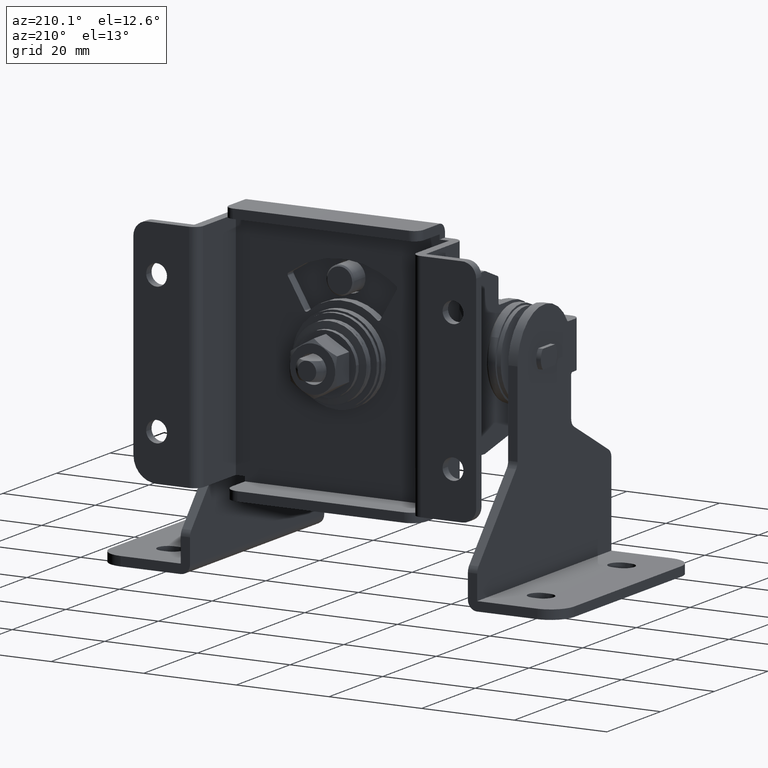
[diagram: clean part render]
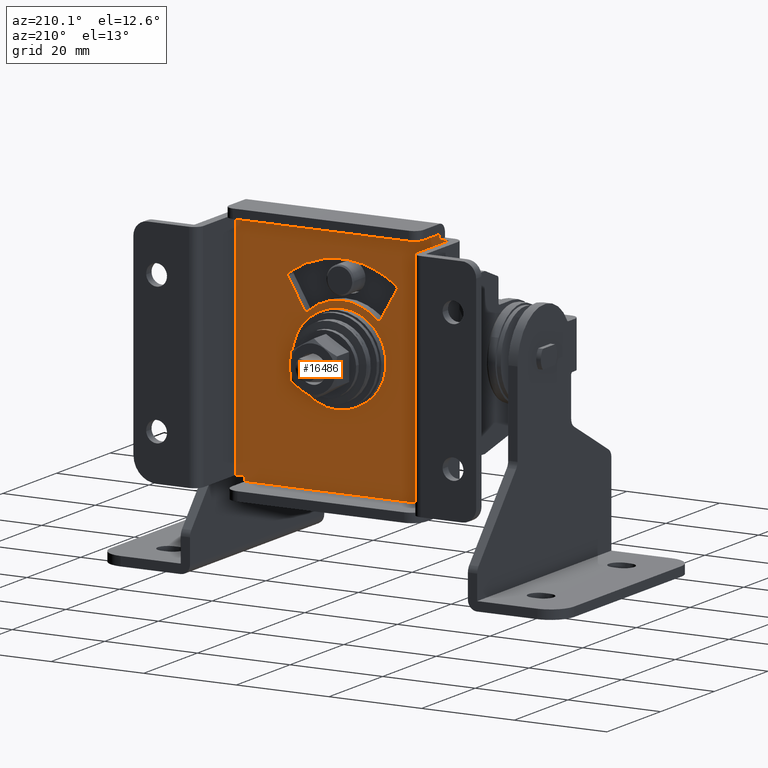
[diagram: same view with one face highlighted and labeled with its STEP entity id]
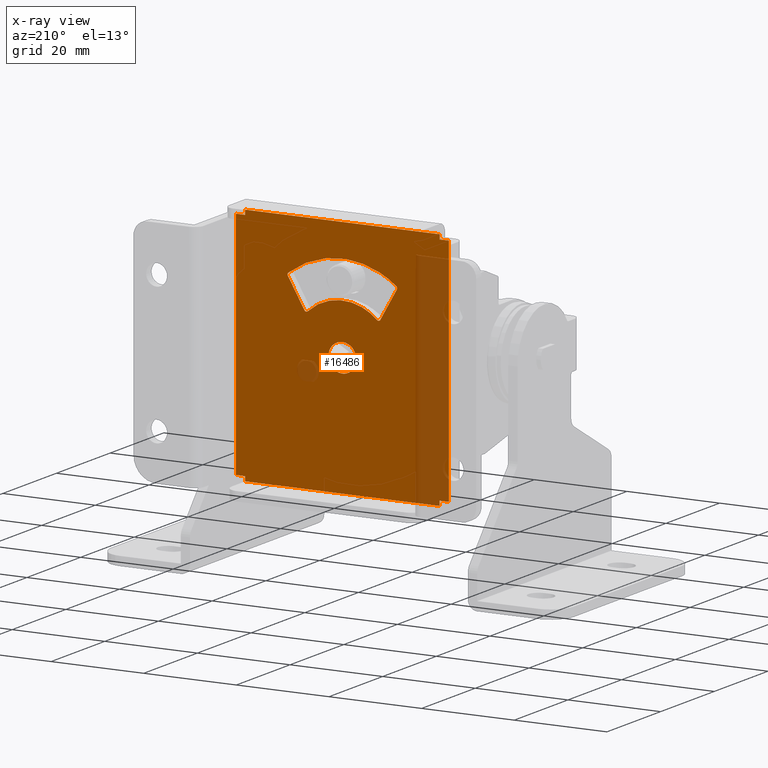
[diagram: x-ray of the same camera — body ghosted, the highlighted face saturated]
A machine part, auxiliary view. The second image highlights one B-rep face of the part: STEP entity #16486.
The next image is the same camera in x-ray: the body ghosted, the highlighted face saturated — about 16% of this face is hidden behind the body in this view.
In plain terms, the highlighted face is a freeform B-spline surface patch.
Its self-contained STEP definition (entity closure, byte-faithful):
#13644=CARTESIAN_POINT('',(-3.015674934529903,-14.0,0.237338764739389));
#13645=VERTEX_POINT('',#13644);
#13651=CARTESIAN_POINT('',(7.105427E-015,-14.0,3.025000000000000));
#13652=VERTEX_POINT('',#13651);
#13653=CARTESIAN_POINT('',(7.105427E-015,-14.0,3.025000000000000));
#13654=CARTESIAN_POINT('',(-2.796281236963489,-14.000000000000007,3.025000000000000));
#13655=CARTESIAN_POINT('',(-3.015674934529903,-14.000000000000002,0.237338764739389));
#13663=(BOUNDED_CURVE()B_SPLINE_CURVE(2,(#13653,#13654,#13655),.UNSPECIFIED.,.F.,.U.)B_SPLINE_CURVE_WITH_KNOTS((3,3),(0.0,0.236331300614275),.UNSPECIFIED.)CURVE()GEOMETRIC_REPRESENTATION_ITEM()RATIONAL_B_SPLINE_CURVE((1.0,0.723120658626862,0.969723356133223))REPRESENTATION_ITEM(''));
#13664=EDGE_CURVE('',#13652,#13645,#13663,.T.);
#13666=CARTESIAN_POINT('',(3.015674934529917,-14.0,-0.237338764739389));
#13667=VERTEX_POINT('',#13666);
#13668=CARTESIAN_POINT('',(3.015674934529917,-14.000000000000004,-0.237338764739389));
#13669=CARTESIAN_POINT('',(3.025000000000007,-14.000000000000002,-0.118852573861613));
#13670=CARTESIAN_POINT('',(3.025000000000007,-14.0,0.0));
#13671=CARTESIAN_POINT('',(3.025000000000007,-13.999999999999998,3.025000000000000));
#13672=CARTESIAN_POINT('',(7.105427E-015,-14.0,3.025000000000000));
#13680=(BOUNDED_CURVE()B_SPLINE_CURVE(2,(#13668,#13669,#13670,#13671,#13672),.UNSPECIFIED.,.F.,.U.)B_SPLINE_CURVE_WITH_KNOTS((3,2,3),(0.736331300614275,0.750000000000000,1.0),.UNSPECIFIED.)CURVE()GEOMETRIC_REPRESENTATION_ITEM()RATIONAL_B_SPLINE_CURVE((0.969723356133223,0.983986122559686,1.0,0.707106781186548,1.0))REPRESENTATION_ITEM(''));
#13681=EDGE_CURVE('',#13667,#13652,#13680,.T.);
#13757=CARTESIAN_POINT('',(7.105427E-015,-14.0,-3.025000000000000));
#13758=VERTEX_POINT('',#13757);
#13759=CARTESIAN_POINT('',(7.105427E-015,-14.0,-3.025000000000000));
#13760=CARTESIAN_POINT('',(2.796281236963497,-13.999999999999996,-3.024999999999999));
#13761=CARTESIAN_POINT('',(3.015674934529917,-14.000000000000004,-0.237338764739389));
#13769=(BOUNDED_CURVE()B_SPLINE_CURVE(2,(#13759,#13760,#13761),.UNSPECIFIED.,.F.,.U.)B_SPLINE_CURVE_WITH_KNOTS((3,3),(0.500000000000000,0.736331300614274),.UNSPECIFIED.)CURVE()GEOMETRIC_REPRESENTATION_ITEM()RATIONAL_B_SPLINE_CURVE((1.0,0.723120658626862,0.969723356133223))REPRESENTATION_ITEM(''));
#13770=EDGE_CURVE('',#13758,#13667,#13769,.T.);
#13772=CARTESIAN_POINT('',(-3.015674934529903,-14.000000000000002,0.237338764739389));
#13773=CARTESIAN_POINT('',(-3.024999999999993,-14.0,0.118852573861612));
#13774=CARTESIAN_POINT('',(-3.024999999999993,-14.0,0.0));
#13775=CARTESIAN_POINT('',(-3.024999999999992,-13.999999999999998,-3.025000000000000));
#13776=CARTESIAN_POINT('',(7.105427E-015,-14.0,-3.025000000000000));
#13784=(BOUNDED_CURVE()B_SPLINE_CURVE(2,(#13772,#13773,#13774,#13775,#13776),.UNSPECIFIED.,.F.,.U.)B_SPLINE_CURVE_WITH_KNOTS((3,2,3),(0.236331300614275,0.250000000000000,0.500000000000000),.UNSPECIFIED.)CURVE()GEOMETRIC_REPRESENTATION_ITEM()RATIONAL_B_SPLINE_CURVE((0.969723356133223,0.983986122559686,1.0,0.707106781186548,1.0))REPRESENTATION_ITEM(''));
#13785=EDGE_CURVE('',#13645,#13758,#13784,.T.);
#14533=CARTESIAN_POINT('',(11.763227601264800,-14.0,14.374507866387720));
#14534=VERTEX_POINT('',#14533);
#14535=CARTESIAN_POINT('',(11.636436923680121,-14.0,15.019764835749550));
#14536=VERTEX_POINT('',#14535);
#14537=CARTESIAN_POINT('',(11.763227601264800,-14.0,14.374507866387720));
#14538=CARTESIAN_POINT('',(11.981445491501008,-13.999999999999996,14.752472339396904));
#14539=CARTESIAN_POINT('',(11.636436923680121,-14.0,15.019764835749550));
#14547=(BOUNDED_CURVE()B_SPLINE_CURVE(2,(#14537,#14538,#14539),.UNSPECIFIED.,.F.,.U.)CURVE()GEOMETRIC_REPRESENTATION_ITEM()QUASI_UNIFORM_CURVE()RATIONAL_B_SPLINE_CURVE((1.0,0.753370803500833,1.0))REPRESENTATION_ITEM(''));
#14548=EDGE_CURVE('',#14534,#14536,#14547,.T.);
#14585=CARTESIAN_POINT('',(8.210562291513991,-14.0,8.221111047611910));
#14586=VERTEX_POINT('',#14585);
#14587=CARTESIAN_POINT('',(8.210562291513991,-14.0,8.221111047611910));
#14588=CARTESIAN_POINT('',(11.763227601264800,-14.0,14.374507866387720));
#14589=QUASI_UNIFORM_CURVE('',1,(#14587,#14588),.UNSPECIFIED.,.F.,.U.);
#14590=EDGE_CURVE('',#14586,#14534,#14589,.T.);
#14622=CARTESIAN_POINT('',(7.439395259638551,-14.0,8.102801871628572));
#14623=VERTEX_POINT('',#14622);
#14624=CARTESIAN_POINT('',(7.439395259638551,-14.0,8.102801871628572));
#14625=CARTESIAN_POINT('',(7.616167518609614,-14.000000000000002,7.940502616845096));
#14626=CARTESIAN_POINT('',(7.853370384663576,-14.0,7.976893274723055));
#14627=CARTESIAN_POINT('',(8.090573250717537,-14.000000000000002,8.013283932601015));
#14628=CARTESIAN_POINT('',(8.210562291513986,-14.0,8.221111047611913));
#14636=(BOUNDED_CURVE()B_SPLINE_CURVE(2,(#14624,#14625,#14626,#14627,#14628),.UNSPECIFIED.,.F.,.U.)B_SPLINE_CURVE_WITH_KNOTS((3,2,3),(0.0,0.500000000000000,1.0),.UNSPECIFIED.)CURVE()GEOMETRIC_REPRESENTATION_ITEM()RATIONAL_B_SPLINE_CURVE((1.0,0.901538474545471,1.0,0.901538474545471,1.0))REPRESENTATION_ITEM(''));
#14637=EDGE_CURVE('',#14623,#14586,#14636,.T.);
#14679=CARTESIAN_POINT('',(-7.439395259638510,-14.0,8.102801871628691));
#14680=VERTEX_POINT('',#14679);
#14681=CARTESIAN_POINT('',(7.439395259638550,-14.0,8.102801871628573));
#14682=CARTESIAN_POINT('',(7.719519E-014,-14.000000000000002,14.933106093050728));
#14683=CARTESIAN_POINT('',(-7.439395259638510,-14.0,8.102801871628691));
#14691=(BOUNDED_CURVE()B_SPLINE_CURVE(2,(#14681,#14682,#14683),.UNSPECIFIED.,.F.,.U.)CURVE()GEOMETRIC_REPRESENTATION_ITEM()QUASI_UNIFORM_CURVE()RATIONAL_B_SPLINE_CURVE((1.0,0.736618351966237,1.0))REPRESENTATION_ITEM(''));
#14692=EDGE_CURVE('',#14623,#14680,#14691,.T.);
#14732=CARTESIAN_POINT('',(-8.210562291514291,-14.0,8.221111047611799));
#14733=VERTEX_POINT('',#14732);
#14734=CARTESIAN_POINT('',(-8.210562291514298,-14.0,8.221111047611796));
#14735=CARTESIAN_POINT('',(-8.090573250717785,-14.0,8.013283932600785));
#14736=CARTESIAN_POINT('',(-7.853370384663680,-14.0,7.976893274722904));
#14737=CARTESIAN_POINT('',(-7.616167518609575,-14.0,7.940502616845024));
#14738=CARTESIAN_POINT('',(-7.439395259638506,-14.0,8.102801871628685));
#14746=(BOUNDED_CURVE()B_SPLINE_CURVE(2,(#14734,#14735,#14736,#14737,#14738),.UNSPECIFIED.,.F.,.U.)B_SPLINE_CURVE_WITH_KNOTS((3,2,3),(0.0,0.500000000000000,1.0),.UNSPECIFIED.)CURVE()GEOMETRIC_REPRESENTATION_ITEM()RATIONAL_B_SPLINE_CURVE((1.0,0.901538474545379,1.0,0.901538474545379,1.0))REPRESENTATION_ITEM(''));
#14747=EDGE_CURVE('',#14733,#14680,#14746,.T.);
#14780=CARTESIAN_POINT('',(-11.763227601265100,-14.0,14.374507866387519));
#14781=VERTEX_POINT('',#14780);
#14782=CARTESIAN_POINT('',(-11.763227601265100,-14.0,14.374507866387519));
#14783=CARTESIAN_POINT('',(-8.210562291514291,-14.0,8.221111047611799));
#14784=QUASI_UNIFORM_CURVE('',1,(#14782,#14783),.UNSPECIFIED.,.F.,.U.);
#14785=EDGE_CURVE('',#14781,#14733,#14784,.T.);
#14817=CARTESIAN_POINT('',(-11.636436923680259,-14.0,15.019764835749349));
#14818=VERTEX_POINT('',#14817);
#14819=CARTESIAN_POINT('',(-11.636436923680259,-14.0,15.019764835749360));
#14820=CARTESIAN_POINT('',(-11.981445491501129,-14.000000000000002,14.752472339396757));
#14821=CARTESIAN_POINT('',(-11.763227601265120,-14.0,14.374507866387511));
#14829=(BOUNDED_CURVE()B_SPLINE_CURVE(2,(#14819,#14820,#14821),.UNSPECIFIED.,.F.,.U.)CURVE()GEOMETRIC_REPRESENTATION_ITEM()QUASI_UNIFORM_CURVE()RATIONAL_B_SPLINE_CURVE((1.0,0.753370803500868,1.0))REPRESENTATION_ITEM(''));
#14830=EDGE_CURVE('',#14818,#14781,#14829,.T.);
#14870=CARTESIAN_POINT('',(11.636436923680121,-14.0,15.019764835749550));
#14871=CARTESIAN_POINT('',(-1.439820E-013,-13.999999999999996,24.034996815713370));
#14872=CARTESIAN_POINT('',(-11.636436923680220,-14.0,15.019764835749321));
#14880=(BOUNDED_CURVE()B_SPLINE_CURVE(2,(#14870,#14871,#14872),.UNSPECIFIED.,.F.,.U.)CURVE()GEOMETRIC_REPRESENTATION_ITEM()QUASI_UNIFORM_CURVE()RATIONAL_B_SPLINE_CURVE((1.0,0.790513938723652,1.0))REPRESENTATION_ITEM(''));
#14881=EDGE_CURVE('',#14536,#14818,#14880,.T.);
#15028=CARTESIAN_POINT('',(21.0,-14.0,25.999999999999449));
#15029=VERTEX_POINT('',#15028);
#15065=CARTESIAN_POINT('',(21.0,-14.0,24.999999999999350));
#15066=VERTEX_POINT('',#15065);
#15072=CARTESIAN_POINT('',(21.0,-14.0,25.999999999999449));
#15073=CARTESIAN_POINT('',(21.0,-14.0,24.999999999999350));
#15074=QUASI_UNIFORM_CURVE('',1,(#15072,#15073),.UNSPECIFIED.,.F.,.U.);
#15075=EDGE_CURVE('',#15029,#15066,#15074,.T.);
#15093=CARTESIAN_POINT('',(-21.0,-14.0,25.999999999999449));
#15094=VERTEX_POINT('',#15093);
#15100=CARTESIAN_POINT('',(-21.0,-14.0,24.999999999999350));
#15101=VERTEX_POINT('',#15100);
#15102=CARTESIAN_POINT('',(-21.0,-14.0,25.999999999999449));
#15103=CARTESIAN_POINT('',(-21.0,-14.0,24.999999999999350));
#15104=QUASI_UNIFORM_CURVE('',1,(#15102,#15103),.UNSPECIFIED.,.F.,.U.);
#15105=EDGE_CURVE('',#15094,#15101,#15104,.T.);
#15196=CARTESIAN_POINT('',(-21.0,-14.0,25.999999999999449));
#15197=CARTESIAN_POINT('',(21.0,-14.0,25.999999999999449));
#15198=QUASI_UNIFORM_CURVE('',1,(#15196,#15197),.UNSPECIFIED.,.F.,.U.);
#15199=EDGE_CURVE('',#15094,#15029,#15198,.T.);
#15597=CARTESIAN_POINT('',(21.0,-14.0,-25.999999999999400));
#15598=VERTEX_POINT('',#15597);
#15604=CARTESIAN_POINT('',(21.0,-14.0,-25.0));
#15605=VERTEX_POINT('',#15604);
#15606=CARTESIAN_POINT('',(21.0,-14.0,-25.999999999999400));
#15607=CARTESIAN_POINT('',(21.0,-14.0,-25.0));
#15608=QUASI_UNIFORM_CURVE('',1,(#15606,#15607),.UNSPECIFIED.,.F.,.U.);
#15609=EDGE_CURVE('',#15598,#15605,#15608,.T.);
#15646=CARTESIAN_POINT('',(-21.0,-14.0,-25.999999999999400));
#15647=VERTEX_POINT('',#15646);
#15683=CARTESIAN_POINT('',(-21.0,-14.0,-25.0));
#15684=VERTEX_POINT('',#15683);
#15690=CARTESIAN_POINT('',(-21.0,-14.0,-25.999999999999400));
#15691=CARTESIAN_POINT('',(-21.0,-14.0,-25.0));
#15692=QUASI_UNIFORM_CURVE('',1,(#15690,#15691),.UNSPECIFIED.,.F.,.U.);
#15693=EDGE_CURVE('',#15647,#15684,#15692,.T.);
#15757=CARTESIAN_POINT('',(-21.0,-14.0,-25.999999999999400));
#15758=CARTESIAN_POINT('',(21.0,-14.0,-25.999999999999400));
#15759=QUASI_UNIFORM_CURVE('',1,(#15757,#15758),.UNSPECIFIED.,.F.,.U.);
#15760=EDGE_CURVE('',#15647,#15598,#15759,.T.);
#16028=CARTESIAN_POINT('',(23.0,-14.0,-25.0));
#16029=VERTEX_POINT('',#16028);
#16061=CARTESIAN_POINT('',(21.0,-14.0,-25.0));
#16062=CARTESIAN_POINT('',(23.0,-14.0,-25.0));
#16063=QUASI_UNIFORM_CURVE('',1,(#16061,#16062),.UNSPECIFIED.,.F.,.U.);
#16064=EDGE_CURVE('',#15605,#16029,#16063,.T.);
#16074=CARTESIAN_POINT('',(23.0,-14.0,25.0));
#16075=VERTEX_POINT('',#16074);
#16076=CARTESIAN_POINT('',(21.0,-14.0,24.999999999999350));
#16077=CARTESIAN_POINT('',(23.0,-14.0,25.0));
#16078=QUASI_UNIFORM_CURVE('',1,(#16076,#16077),.UNSPECIFIED.,.F.,.U.);
#16079=EDGE_CURVE('',#15066,#16075,#16078,.T.);
#16207=CARTESIAN_POINT('',(23.0,-14.0,25.0));
#16208=CARTESIAN_POINT('',(23.0,-14.0,-25.0));
#16209=QUASI_UNIFORM_CURVE('',1,(#16207,#16208),.UNSPECIFIED.,.F.,.U.);
#16210=EDGE_CURVE('',#16075,#16029,#16209,.T.);
#16220=CARTESIAN_POINT('',(-23.0,-14.0,-25.0));
#16221=VERTEX_POINT('',#16220);
#16228=CARTESIAN_POINT('',(-23.0,-14.0,25.0));
#16229=VERTEX_POINT('',#16228);
#16235=CARTESIAN_POINT('',(-23.0,-14.0,25.0));
#16236=CARTESIAN_POINT('',(-23.0,-14.0,-25.0));
#16237=QUASI_UNIFORM_CURVE('',1,(#16235,#16236),.UNSPECIFIED.,.F.,.U.);
#16238=EDGE_CURVE('',#16229,#16221,#16237,.T.);
#16371=CARTESIAN_POINT('',(-23.0,-14.0,-25.0));
#16372=CARTESIAN_POINT('',(-21.0,-14.0,-25.0));
#16373=QUASI_UNIFORM_CURVE('',1,(#16371,#16372),.UNSPECIFIED.,.F.,.U.);
#16374=EDGE_CURVE('',#16221,#15684,#16373,.T.);
#16395=CARTESIAN_POINT('',(-23.0,-14.0,25.0));
#16396=CARTESIAN_POINT('',(-21.0,-14.0,24.999999999999350));
#16397=QUASI_UNIFORM_CURVE('',1,(#16395,#16396),.UNSPECIFIED.,.F.,.U.);
#16398=EDGE_CURVE('',#16229,#15101,#16397,.T.);
#16451=CARTESIAN_POINT('',(-25.297699910843079,-14.0,-28.597399899213261));
#16452=CARTESIAN_POINT('',(-25.297699910843079,-14.0,28.597401293961990));
#16453=CARTESIAN_POINT('',(25.297701144659229,-14.0,-28.597399899213261));
#16454=CARTESIAN_POINT('',(25.297701144659229,-14.0,28.597401293961990));
#16455=B_SPLINE_SURFACE_WITH_KNOTS('',1,1,((#16451,#16453),(#16452,#16454)),.UNSPECIFIED.,.F.,.F.,.U.,(2,2),(2,2),(0.0,57.194801193175252),(0.0,50.595401055502307),.UNSPECIFIED.);
#16456=ORIENTED_EDGE('',*,*,#16374,.F.);
#16457=ORIENTED_EDGE('',*,*,#16238,.F.);
#16458=ORIENTED_EDGE('',*,*,#16398,.T.);
#16459=ORIENTED_EDGE('',*,*,#15105,.F.);
#16460=ORIENTED_EDGE('',*,*,#15199,.T.);
#16461=ORIENTED_EDGE('',*,*,#15075,.T.);
#16462=ORIENTED_EDGE('',*,*,#16079,.T.);
#16463=ORIENTED_EDGE('',*,*,#16210,.T.);
#16464=ORIENTED_EDGE('',*,*,#16064,.F.);
#16465=ORIENTED_EDGE('',*,*,#15609,.F.);
#16466=ORIENTED_EDGE('',*,*,#15760,.F.);
#16467=ORIENTED_EDGE('',*,*,#15693,.T.);
#16468=EDGE_LOOP('',(#16456,#16457,#16458,#16459,#16460,#16461,#16462,#16463,#16464,#16465,#16466,#16467));
#16469=FACE_OUTER_BOUND('',#16468,.T.);
#16470=ORIENTED_EDGE('',*,*,#14548,.T.);
#16471=ORIENTED_EDGE('',*,*,#14881,.T.);
#16472=ORIENTED_EDGE('',*,*,#14830,.T.);
#16473=ORIENTED_EDGE('',*,*,#14785,.T.);
#16474=ORIENTED_EDGE('',*,*,#14747,.T.);
#16475=ORIENTED_EDGE('',*,*,#14692,.F.);
#16476=ORIENTED_EDGE('',*,*,#14637,.T.);
#16477=ORIENTED_EDGE('',*,*,#14590,.T.);
#16478=EDGE_LOOP('',(#16470,#16471,#16472,#16473,#16474,#16475,#16476,#16477));
#16479=FACE_BOUND('',#16478,.T.);
#16480=ORIENTED_EDGE('',*,*,#13770,.T.);
#16481=ORIENTED_EDGE('',*,*,#13681,.T.);
#16482=ORIENTED_EDGE('',*,*,#13664,.T.);
#16483=ORIENTED_EDGE('',*,*,#13785,.T.);
#16484=EDGE_LOOP('',(#16480,#16481,#16482,#16483));
#16485=FACE_BOUND('',#16484,.T.);
#16486=ADVANCED_FACE('',(#16469,#16479,#16485),#16455,.T.);